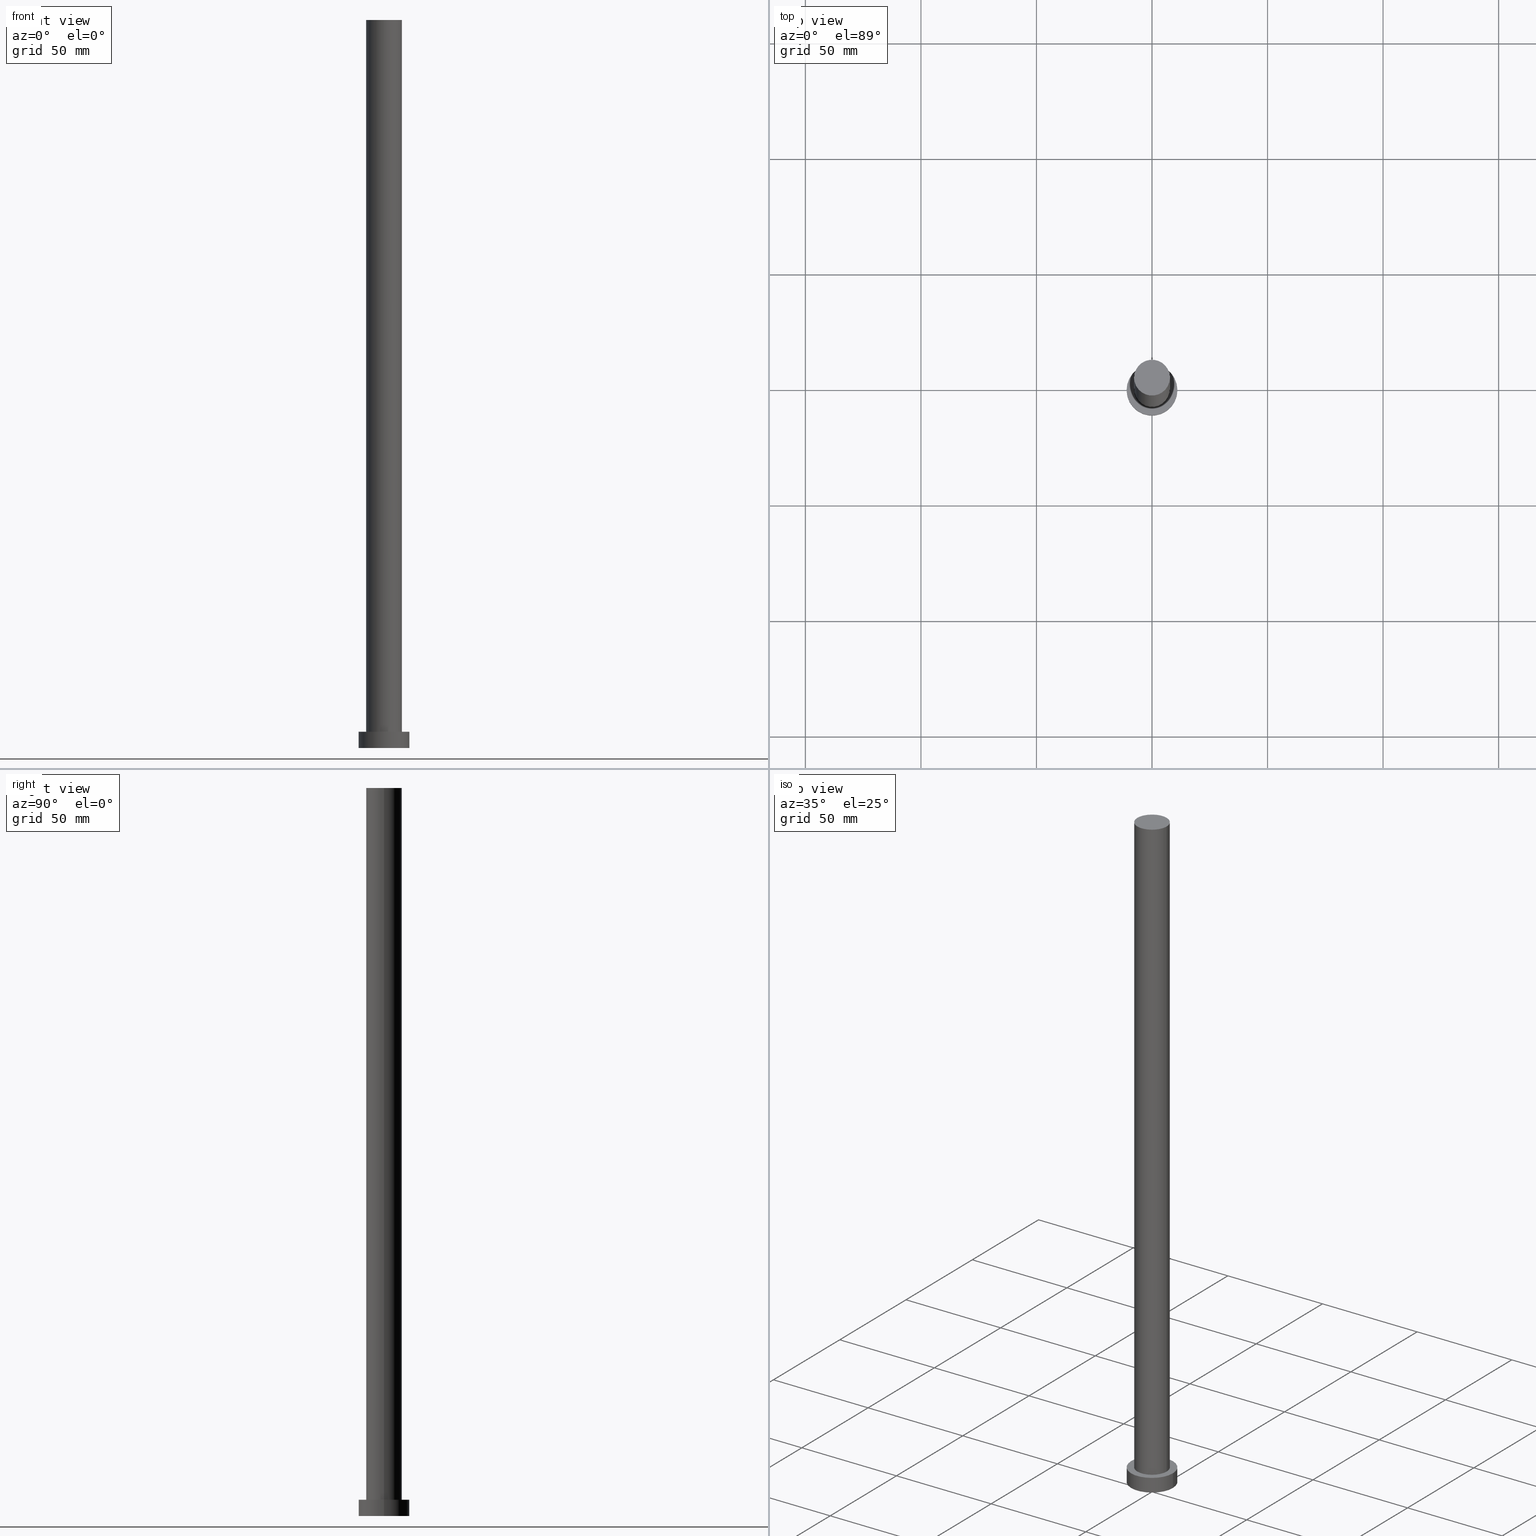
[diagram: canonical four-view strip — front | top / right | iso, engineering-drawing reading convention]
A machine part, canonical four-view strip (front | top / right | iso — engineering-drawing reading convention). The complete STEP part file that produces these views, byte-faithful:
ISO-10303-21;
HEADER;
FILE_DESCRIPTION (( 'STEP AP203' ),
    '1' );
FILE_NAME ('8a33.STEP',
    '2023-02-13T09:48:13',
    ( '' ),
    ( '' ),
    'SwSTEP 2.0',
    'SolidWorks 2019',
    '' );
FILE_SCHEMA (( 'CONFIG_CONTROL_DESIGN' ));
ENDSEC;

DATA;
#1 = DATE_AND_TIME ( #240, #199 ) ;
#2 = FACE_OUTER_BOUND ( 'NONE', #90, .T. ) ;
#3 = CIRCLE ( 'NONE', #181, 11.00000000000000000 ) ;
#4 = CIRCLE ( 'NONE', #31, 7.750000000000000000 ) ;
#5 = LINE ( 'NONE', #83, #39 ) ;
#6 = PRODUCT_DEFINITION ( 'NEZN�M�', '', #219, #143 ) ;
#7 = AXIS2_PLACEMENT_3D ( 'NONE', #74, #78, #198 ) ;
#8 = COORDINATED_UNIVERSAL_TIME_OFFSET ( 1, 0, .AHEAD. ) ;
#9 = ORIENTED_EDGE ( 'NONE', *, *, #93, .T. ) ;
#10 = ORIENTED_EDGE ( 'NONE', *, *, #93, .F. ) ;
#11 = EDGE_LOOP ( 'NONE', ( #176, #244 ) ) ;
#12 = AXIS2_PLACEMENT_3D ( 'NONE', #125, #150, #218 ) ;
#13 = APPLICATION_CONTEXT ( 'configuration controlled 3d designs of mechanical parts and assemblies' ) ;
#14 = DIRECTION ( 'NONE',  ( 0.000000000000000000, 0.000000000000000000, 1.000000000000000000 ) ) ;
#15 = APPROVAL_PERSON_ORGANIZATION ( #116, #62, #159 ) ;
#16 = LINE ( 'NONE', #253, #222 ) ;
#17 = CARTESIAN_POINT ( 'NONE',  ( 0.000000000000000000, 0.000000000000000000, 7.000000000000000000 ) ) ;
#18 = DIRECTION ( 'NONE',  ( -1.000000000000000000, 0.000000000000000000, 0.000000000000000000 ) ) ;
#19 = CARTESIAN_POINT ( 'NONE',  ( 7.750000000000000000, 9.491012693391987787E-16, 7.000000000000000000 ) ) ;
#20 = CIRCLE ( 'NONE', #101, 11.00000000000000000 ) ;
#21 = CARTESIAN_POINT ( 'NONE',  ( 0.000000000000000000, 0.000000000000000000, 315.0000000000000000 ) ) ;
#22 = DIRECTION ( 'NONE',  ( -0.000000000000000000, -0.000000000000000000, -1.000000000000000000 ) ) ;
#23 = COORDINATED_UNIVERSAL_TIME_OFFSET ( 1, 0, .AHEAD. ) ;
#24 = CARTESIAN_POINT ( 'NONE',  ( -11.00000000000000000, 0.000000000000000000, 7.000000000000000000 ) ) ;
#25 = APPROVAL_DATE_TIME ( #48, #207 ) ;
#26 = DIRECTION ( 'NONE',  ( 1.000000000000000000, 0.000000000000000000, 0.000000000000000000 ) ) ;
#27 = AXIS2_PLACEMENT_3D ( 'NONE', #202, #22, #255 ) ;
#28 = APPROVAL_DATE_TIME ( #164, #49 ) ;
#29 = DIRECTION ( 'NONE',  ( 1.000000000000000000, 0.000000000000000000, 0.000000000000000000 ) ) ;
#30 = CC_DESIGN_PERSON_AND_ORGANIZATION_ASSIGNMENT ( #239, #67, ( #219 ) ) ;
#31 = AXIS2_PLACEMENT_3D ( 'NONE', #21, #102, #215 ) ;
#32 = CARTESIAN_POINT ( 'NONE',  ( 0.000000000000000000, 0.000000000000000000, 7.000000000000000000 ) ) ;
#33 = ORIENTED_EDGE ( 'NONE', *, *, #242, .F. ) ;
#34 = CIRCLE ( 'NONE', #58, 11.00000000000000000 ) ;
#35 = CIRCLE ( 'NONE', #250, 7.750000000000000000 ) ;
#36 = VERTEX_POINT ( 'NONE', #247 ) ;
#37 = PRODUCT_RELATED_PRODUCT_CATEGORY ( 'detail', '', ( #228 ) ) ;
#38 = ORIENTED_EDGE ( 'NONE', *, *, #98, .T. ) ;
#39 = VECTOR ( 'NONE', #163, 1000.000000000000000 ) ;
#40 = CC_DESIGN_DATE_AND_TIME_ASSIGNMENT ( #237, #221, ( #6 ) ) ;
#41 = CARTESIAN_POINT ( 'NONE',  ( 0.000000000000000000, 0.000000000000000000, 7.000000000000000000 ) ) ;
#42 = CARTESIAN_POINT ( 'NONE',  ( 0.000000000000000000, 0.000000000000000000, 315.0000000000000000 ) ) ;
#43 = DIRECTION ( 'NONE',  ( -1.000000000000000000, 0.000000000000000000, 0.000000000000000000 ) ) ;
#44 = DIRECTION ( 'NONE',  ( -0.000000000000000000, -0.000000000000000000, -1.000000000000000000 ) ) ;
#45 = ADVANCED_FACE ( 'NONE', ( #59, #69 ), #249, .T. ) ;
#46 = DIRECTION ( 'NONE',  ( -0.000000000000000000, -0.000000000000000000, -1.000000000000000000 ) ) ;
#47 = PERSON_AND_ORGANIZATION_ROLE ( 'design_owner' ) ;
#48 = DATE_AND_TIME ( #131, #243 ) ;
#49 = APPROVAL ( #107, 'NEUR�EN�' ) ;
#50 = APPROVAL_STATUS ( 'not_yet_approved' ) ;
#51 =( LENGTH_UNIT ( ) NAMED_UNIT ( * ) SI_UNIT ( .MILLI., .METRE. ) );
#52 = CIRCLE ( 'NONE', #194, 7.750000000000000000 ) ;
#53 = AXIS2_PLACEMENT_3D ( 'NONE', #165, #65, #29 ) ;
#54 = SHAPE_DEFINITION_REPRESENTATION ( #196, #201 ) ;
#55 = DATE_AND_TIME ( #193, #81 ) ;
#56 = VERTEX_POINT ( 'NONE', #158 ) ;
#57 = VERTEX_POINT ( 'NONE', #212 ) ;
#58 = AXIS2_PLACEMENT_3D ( 'NONE', #119, #234, #197 ) ;
#59 = FACE_BOUND ( 'NONE', #91, .T. ) ;
#60 = DIRECTION ( 'NONE',  ( -0.000000000000000000, -0.000000000000000000, -1.000000000000000000 ) ) ;
#61 = CYLINDRICAL_SURFACE ( 'NONE', #134, 11.00000000000000000 ) ;
#62 = APPROVAL ( #169, 'NEUR�EN�' ) ;
#63 = CARTESIAN_POINT ( 'NONE',  ( 11.00000000000000000, 1.347111479062088405E-15, 7.000000000000000000 ) ) ;
#64 = APPLICATION_PROTOCOL_DEFINITION ( 'international standard', 'config_control_design', 1994, #141 ) ;
#65 = DIRECTION ( 'NONE',  ( 0.000000000000000000, 0.000000000000000000, 1.000000000000000000 ) ) ;
#66 = CARTESIAN_POINT ( 'NONE',  ( 0.000000000000000000, 0.000000000000000000, 7.000000000000000000 ) ) ;
#67 = PERSON_AND_ORGANIZATION_ROLE ( 'creator' ) ;
#68 = MANIFOLD_SOLID_BREP ( 'P�idat vysunut�m3', #175 ) ;
#69 = FACE_OUTER_BOUND ( 'NONE', #140, .T. ) ;
#70 = CC_DESIGN_PERSON_AND_ORGANIZATION_ASSIGNMENT ( #184, #132, ( #6 ) ) ;
#71 = ORIENTED_EDGE ( 'NONE', *, *, #124, .F. ) ;
#72 = CC_DESIGN_PERSON_AND_ORGANIZATION_ASSIGNMENT ( #156, #154, ( #219 ) ) ;
#73 = ORIENTED_EDGE ( 'NONE', *, *, #98, .F. ) ;
#74 = CARTESIAN_POINT ( 'NONE',  ( 0.000000000000000000, 0.000000000000000000, 7.000000000000000000 ) ) ;
#75 = UNCERTAINTY_MEASURE_WITH_UNIT (LENGTH_MEASURE( 1.000000000000000082E-05 ), #51, 'distance_accuracy_value', 'NONE');
#76 = CARTESIAN_POINT ( 'NONE',  ( 7.750000000000000000, 9.491012693391987787E-16, 315.0000000000000000 ) ) ;
#77 = ADVANCED_FACE ( 'NONE', ( #2 ), #235, .T. ) ;
#78 = DIRECTION ( 'NONE',  ( 0.000000000000000000, 0.000000000000000000, 1.000000000000000000 ) ) ;
#79 = FACE_OUTER_BOUND ( 'NONE', #209, .T. ) ;
#80 = CARTESIAN_POINT ( 'NONE',  ( 0.000000000000000000, 0.000000000000000000, 0.000000000000000000 ) ) ;
#81 = LOCAL_TIME ( 10, 48, 13.00000000000000000, #168 ) ;
#82 = PERSON_AND_ORGANIZATION ( #232, #138 ) ;
#83 = CARTESIAN_POINT ( 'NONE',  ( 11.00000000000000000, 1.347111479062088405E-15, 7.000000000000000000 ) ) ;
#84 = APPROVAL_ROLE ( '' ) ;
#85 = CARTESIAN_POINT ( 'NONE',  ( 0.000000000000000000, 0.000000000000000000, 0.000000000000000000 ) ) ;
#86 = EDGE_CURVE ( 'NONE', #135, #36, #106, .T. ) ;
#87 = PERSON_AND_ORGANIZATION ( #232, #138 ) ;
#88 = ORIENTED_EDGE ( 'NONE', *, *, #86, .F. ) ;
#89 = CC_DESIGN_APPROVAL ( #62, ( #162 ) ) ;
#90 = EDGE_LOOP ( 'NONE', ( #189, #166, #225, #210 ) ) ;
#91 = EDGE_LOOP ( 'NONE', ( #174, #192 ) ) ;
#92 = VERTEX_POINT ( 'NONE', #19 ) ;
#93 = EDGE_CURVE ( 'NONE', #56, #36, #144, .T. ) ;
#94 = VERTEX_POINT ( 'NONE', #100 ) ;
#95 =( GEOMETRIC_REPRESENTATION_CONTEXT ( 3 ) GLOBAL_UNCERTAINTY_ASSIGNED_CONTEXT ( ( #75 ) ) GLOBAL_UNIT_ASSIGNED_CONTEXT ( ( #51, #183, #161 ) ) REPRESENTATION_CONTEXT ( 'NONE', 'WORKASPACE' ) );
#96 = DIRECTION ( 'NONE',  ( 1.000000000000000000, 0.000000000000000000, -0.000000000000000000 ) ) ;
#97 = DIRECTION ( 'NONE',  ( 1.000000000000000000, 0.000000000000000000, 0.000000000000000000 ) ) ;
#98 = EDGE_CURVE ( 'NONE', #139, #92, #180, .T. ) ;
#99 = AXIS2_PLACEMENT_3D ( 'NONE', #32, #14, #96 ) ;
#100 = CARTESIAN_POINT ( 'NONE',  ( -7.750000000000000000, 0.000000000000000000, 315.0000000000000000 ) ) ;
#101 = AXIS2_PLACEMENT_3D ( 'NONE', #17, #149, #97 ) ;
#102 = DIRECTION ( 'NONE',  ( 0.000000000000000000, 0.000000000000000000, 1.000000000000000000 ) ) ;
#103 = CARTESIAN_POINT ( 'NONE',  ( 7.750000000000000000, 9.491012693391987787E-16, 315.0000000000000000 ) ) ;
#104 = MECHANICAL_CONTEXT ( 'NONE', #141, 'mechanical' ) ;
#105 = ADVANCED_FACE ( 'NONE', ( #178 ), #118, .T. ) ;
#106 = LINE ( 'NONE', #24, #230 ) ;
#107 = APPROVAL_STATUS ( 'not_yet_approved' ) ;
#108 = DIRECTION ( 'NONE',  ( 1.000000000000000000, 0.000000000000000000, 0.000000000000000000 ) ) ;
#109 = CARTESIAN_POINT ( 'NONE',  ( 0.000000000000000000, 0.000000000000000000, 315.0000000000000000 ) ) ;
#110 = CC_DESIGN_PERSON_AND_ORGANIZATION_ASSIGNMENT ( #111, #186, ( #162 ) ) ;
#111 = PERSON_AND_ORGANIZATION ( #232, #138 ) ;
#112 = AXIS2_PLACEMENT_3D ( 'NONE', #42, #142, #200 ) ;
#113 = ADVANCED_FACE ( 'NONE', ( #79 ), #236, .T. ) ;
#114 = EDGE_LOOP ( 'NONE', ( #71, #10 ) ) ;
#115 = APPROVAL_PERSON_ORGANIZATION ( #87, #49, #153 ) ;
#116 = PERSON_AND_ORGANIZATION ( #232, #138 ) ;
#117 = ORIENTED_EDGE ( 'NONE', *, *, #213, .T. ) ;
#118 = CYLINDRICAL_SURFACE ( 'NONE', #27, 7.750000000000000000 ) ;
#119 = CARTESIAN_POINT ( 'NONE',  ( 0.000000000000000000, 0.000000000000000000, 7.000000000000000000 ) ) ;
#120 = EDGE_CURVE ( 'NONE', #92, #57, #52, .T. ) ;
#121 = DIRECTION ( 'NONE',  ( 0.000000000000000000, 0.000000000000000000, 1.000000000000000000 ) ) ;
#122 = CC_DESIGN_SECURITY_CLASSIFICATION ( #162, ( #219 ) ) ;
#123 = DIRECTION ( 'NONE',  ( -0.000000000000000000, -0.000000000000000000, -1.000000000000000000 ) ) ;
#124 = EDGE_CURVE ( 'NONE', #36, #56, #3, .T. ) ;
#125 = CARTESIAN_POINT ( 'NONE',  ( 0.000000000000000000, 0.000000000000000000, 0.000000000000000000 ) ) ;
#126 = VECTOR ( 'NONE', #123, 1000.000000000000000 ) ;
#127 = CALENDAR_DATE ( 2023, 13, 2 ) ;
#128 = CC_DESIGN_APPROVAL ( #207, ( #6 ) ) ;
#129 = DIRECTION ( 'NONE',  ( 0.000000000000000000, 0.000000000000000000, 1.000000000000000000 ) ) ;
#130 = EDGE_CURVE ( 'NONE', #214, #56, #5, .T. ) ;
#131 = CALENDAR_DATE ( 2023, 13, 2 ) ;
#132 = PERSON_AND_ORGANIZATION_ROLE ( 'creator' ) ;
#133 = AXIS2_PLACEMENT_3D ( 'NONE', #41, #148, #43 ) ;
#134 = AXIS2_PLACEMENT_3D ( 'NONE', #177, #60, #18 ) ;
#135 = VERTEX_POINT ( 'NONE', #251 ) ;
#136 = ORIENTED_EDGE ( 'NONE', *, *, #130, .T. ) ;
#137 = EDGE_CURVE ( 'NONE', #94, #57, #16, .T. ) ;
#138 = ORGANIZATION ( 'NEUR�EN�', 'NEUR�EN�', '' ) ;
#139 = VERTEX_POINT ( 'NONE', #76 ) ;
#140 = EDGE_LOOP ( 'NONE', ( #117, #241 ) ) ;
#141 = APPLICATION_CONTEXT ( 'configuration controlled 3d designs of mechanical parts and assemblies' ) ;
#142 = DIRECTION ( 'NONE',  ( 0.000000000000000000, 0.000000000000000000, 1.000000000000000000 ) ) ;
#143 = DESIGN_CONTEXT ( 'detailed design', #13, 'design' ) ;
#144 = CIRCLE ( 'NONE', #12, 11.00000000000000000 ) ;
#145 = CC_DESIGN_PERSON_AND_ORGANIZATION_ASSIGNMENT ( #152, #47, ( #228 ) ) ;
#146 = CC_DESIGN_APPROVAL ( #49, ( #219 ) ) ;
#147 = FACE_OUTER_BOUND ( 'NONE', #11, .T. ) ;
#148 = DIRECTION ( 'NONE',  ( -0.000000000000000000, -0.000000000000000000, -1.000000000000000000 ) ) ;
#149 = DIRECTION ( 'NONE',  ( 0.000000000000000000, 0.000000000000000000, 1.000000000000000000 ) ) ;
#150 = DIRECTION ( 'NONE',  ( 0.000000000000000000, 0.000000000000000000, 1.000000000000000000 ) ) ;
#151 = LOCAL_TIME ( 10, 48, 13.00000000000000000, #23 ) ;
#152 = PERSON_AND_ORGANIZATION ( #232, #138 ) ;
#153 = APPROVAL_ROLE ( '' ) ;
#154 = PERSON_AND_ORGANIZATION_ROLE ( 'design_supplier' ) ;
#155 = LOCAL_TIME ( 10, 48, 13.00000000000000000, #179 ) ;
#156 = PERSON_AND_ORGANIZATION ( #232, #138 ) ;
#157 = DIRECTION ( 'NONE',  ( 1.000000000000000000, 0.000000000000000000, -0.000000000000000000 ) ) ;
#158 = CARTESIAN_POINT ( 'NONE',  ( 11.00000000000000000, 1.347111479062088405E-15, 0.000000000000000000 ) ) ;
#159 = APPROVAL_ROLE ( '' ) ;
#160 = DIRECTION ( 'NONE',  ( 1.000000000000000000, 0.000000000000000000, 0.000000000000000000 ) ) ;
#161 =( NAMED_UNIT ( * ) SI_UNIT ( $, .STERADIAN. ) SOLID_ANGLE_UNIT ( ) );
#162 = SECURITY_CLASSIFICATION ( '', '', #208 ) ;
#163 = DIRECTION ( 'NONE',  ( -0.000000000000000000, -0.000000000000000000, -1.000000000000000000 ) ) ;
#164 = DATE_AND_TIME ( #223, #155 ) ;
#165 = CARTESIAN_POINT ( 'NONE',  ( 0.000000000000000000, 0.000000000000000000, 0.000000000000000000 ) ) ;
#166 = ORIENTED_EDGE ( 'NONE', *, *, #213, .F. ) ;
#167 = EDGE_CURVE ( 'NONE', #214, #135, #34, .T. ) ;
#168 = COORDINATED_UNIVERSAL_TIME_OFFSET ( 1, 0, .AHEAD. ) ;
#169 = APPROVAL_STATUS ( 'not_yet_approved' ) ;
#170 = AXIS2_PLACEMENT_3D ( 'NONE', #109, #185, #204 ) ;
#171 = ORIENTED_EDGE ( 'NONE', *, *, #167, .F. ) ;
#172 = ORIENTED_EDGE ( 'NONE', *, *, #137, .F. ) ;
#173 = CC_DESIGN_DATE_AND_TIME_ASSIGNMENT ( #1, #248, ( #162 ) ) ;
#174 = ORIENTED_EDGE ( 'NONE', *, *, #182, .F. ) ;
#175 = CLOSED_SHELL ( 'NONE', ( #113, #191, #77, #45, #246, #105, #233 ) ) ;
#176 = ORIENTED_EDGE ( 'NONE', *, *, #217, .T. ) ;
#177 = CARTESIAN_POINT ( 'NONE',  ( 0.000000000000000000, 0.000000000000000000, 7.000000000000000000 ) ) ;
#178 = FACE_OUTER_BOUND ( 'NONE', #190, .T. ) ;
#179 = COORDINATED_UNIVERSAL_TIME_OFFSET ( 1, 0, .AHEAD. ) ;
#180 = LINE ( 'NONE', #103, #126 ) ;
#181 = AXIS2_PLACEMENT_3D ( 'NONE', #85, #129, #108 ) ;
#182 = EDGE_CURVE ( 'NONE', #57, #92, #238, .T. ) ;
#183 =( NAMED_UNIT ( * ) PLANE_ANGLE_UNIT ( ) SI_UNIT ( $, .RADIAN. ) );
#184 = PERSON_AND_ORGANIZATION ( #232, #138 ) ;
#185 = DIRECTION ( 'NONE',  ( -0.000000000000000000, -0.000000000000000000, -1.000000000000000000 ) ) ;
#186 = PERSON_AND_ORGANIZATION_ROLE ( 'classification_officer' ) ;
#187 = APPROVAL_DATE_TIME ( #55, #62 ) ;
#188 = DIRECTION ( 'NONE',  ( 0.000000000000000000, 0.000000000000000000, 1.000000000000000000 ) ) ;
#189 = ORIENTED_EDGE ( 'NONE', *, *, #130, .F. ) ;
#190 = EDGE_LOOP ( 'NONE', ( #73, #211, #227, #245 ) ) ;
#191 = ADVANCED_FACE ( 'NONE', ( #229 ), #61, .T. ) ;
#192 = ORIENTED_EDGE ( 'NONE', *, *, #120, .F. ) ;
#193 = CALENDAR_DATE ( 2023, 13, 2 ) ;
#194 = AXIS2_PLACEMENT_3D ( 'NONE', #66, #188, #26 ) ;
#195 = APPROVAL_PERSON_ORGANIZATION ( #82, #207, #84 ) ;
#196 = PRODUCT_DEFINITION_SHAPE ( 'NONE', 'NONE',  #6 ) ;
#197 = DIRECTION ( 'NONE',  ( 1.000000000000000000, 0.000000000000000000, 0.000000000000000000 ) ) ;
#198 = DIRECTION ( 'NONE',  ( 1.000000000000000000, 0.000000000000000000, 0.000000000000000000 ) ) ;
#199 = LOCAL_TIME ( 10, 48, 13.00000000000000000, #8 ) ;
#200 = DIRECTION ( 'NONE',  ( 1.000000000000000000, 0.000000000000000000, -0.000000000000000000 ) ) ;
#201 = ADVANCED_BREP_SHAPE_REPRESENTATION ( '8a33', ( #68, #53 ), #95 ) ;
#202 = CARTESIAN_POINT ( 'NONE',  ( 0.000000000000000000, 0.000000000000000000, 315.0000000000000000 ) ) ;
#203 = COORDINATED_UNIVERSAL_TIME_OFFSET ( 1, 0, .AHEAD. ) ;
#204 = DIRECTION ( 'NONE',  ( -1.000000000000000000, 0.000000000000000000, 0.000000000000000000 ) ) ;
#205 = APPLICATION_PROTOCOL_DEFINITION ( 'international standard', 'config_control_design', 1994, #13 ) ;
#206 = DIRECTION ( 'NONE',  ( 0.000000000000000000, 0.000000000000000000, 1.000000000000000000 ) ) ;
#207 = APPROVAL ( #50, 'NEUR�EN�' ) ;
#208 = SECURITY_CLASSIFICATION_LEVEL ( 'unclassified' ) ;
#209 = EDGE_LOOP ( 'NONE', ( #33, #38, #252, #172 ) ) ;
#210 = ORIENTED_EDGE ( 'NONE', *, *, #124, .T. ) ;
#211 = ORIENTED_EDGE ( 'NONE', *, *, #217, .F. ) ;
#212 = CARTESIAN_POINT ( 'NONE',  ( -7.750000000000000000, 0.000000000000000000, 7.000000000000000000 ) ) ;
#213 = EDGE_CURVE ( 'NONE', #135, #214, #20, .T. ) ;
#214 = VERTEX_POINT ( 'NONE', #63 ) ;
#215 = DIRECTION ( 'NONE',  ( 1.000000000000000000, 0.000000000000000000, 0.000000000000000000 ) ) ;
#216 = FACE_OUTER_BOUND ( 'NONE', #114, .T. ) ;
#217 = EDGE_CURVE ( 'NONE', #94, #139, #35, .T. ) ;
#218 = DIRECTION ( 'NONE',  ( 1.000000000000000000, 0.000000000000000000, 0.000000000000000000 ) ) ;
#219 = PRODUCT_DEFINITION_FORMATION_WITH_SPECIFIED_SOURCE ( 'LIBOVOLN�', '', #228, .NOT_KNOWN. ) ;
#220 = PLANE ( 'NONE',  #231 ) ;
#221 = DATE_TIME_ROLE ( 'creation_date' ) ;
#222 = VECTOR ( 'NONE', #46, 1000.000000000000000 ) ;
#223 = CALENDAR_DATE ( 2023, 13, 2 ) ;
#224 = EDGE_LOOP ( 'NONE', ( #171, #136, #9, #88 ) ) ;
#225 = ORIENTED_EDGE ( 'NONE', *, *, #86, .T. ) ;
#226 = PLANE ( 'NONE',  #112 ) ;
#227 = ORIENTED_EDGE ( 'NONE', *, *, #137, .T. ) ;
#228 = PRODUCT ( '8a33', '8a33', '', ( #104 ) ) ;
#229 = FACE_OUTER_BOUND ( 'NONE', #224, .T. ) ;
#230 = VECTOR ( 'NONE', #44, 1000.000000000000000 ) ;
#231 = AXIS2_PLACEMENT_3D ( 'NONE', #80, #206, #157 ) ;
#232 = PERSON ( 'NEUR�EN�', 'NEUR�EN�', 'NEUR�EN�', ('NEUR�EN�'), ('NEUR�EN�'), ('NEUR�EN�') ) ;
#233 = ADVANCED_FACE ( 'NONE', ( #147 ), #226, .T. ) ;
#234 = DIRECTION ( 'NONE',  ( 0.000000000000000000, 0.000000000000000000, 1.000000000000000000 ) ) ;
#235 = CYLINDRICAL_SURFACE ( 'NONE', #133, 11.00000000000000000 ) ;
#236 = CYLINDRICAL_SURFACE ( 'NONE', #170, 7.750000000000000000 ) ;
#237 = DATE_AND_TIME ( #127, #151 ) ;
#238 = CIRCLE ( 'NONE', #7, 7.750000000000000000 ) ;
#239 = PERSON_AND_ORGANIZATION ( #232, #138 ) ;
#240 = CALENDAR_DATE ( 2023, 13, 2 ) ;
#241 = ORIENTED_EDGE ( 'NONE', *, *, #167, .T. ) ;
#242 = EDGE_CURVE ( 'NONE', #139, #94, #4, .T. ) ;
#243 = LOCAL_TIME ( 10, 48, 13.00000000000000000, #203 ) ;
#244 = ORIENTED_EDGE ( 'NONE', *, *, #242, .T. ) ;
#245 = ORIENTED_EDGE ( 'NONE', *, *, #182, .T. ) ;
#246 = ADVANCED_FACE ( 'NONE', ( #216 ), #220, .F. ) ;
#247 = CARTESIAN_POINT ( 'NONE',  ( -11.00000000000000000, 0.000000000000000000, 0.000000000000000000 ) ) ;
#248 = DATE_TIME_ROLE ( 'classification_date' ) ;
#249 = PLANE ( 'NONE',  #99 ) ;
#250 = AXIS2_PLACEMENT_3D ( 'NONE', #254, #121, #160 ) ;
#251 = CARTESIAN_POINT ( 'NONE',  ( -11.00000000000000000, 0.000000000000000000, 7.000000000000000000 ) ) ;
#252 = ORIENTED_EDGE ( 'NONE', *, *, #120, .T. ) ;
#253 = CARTESIAN_POINT ( 'NONE',  ( -7.750000000000000000, 0.000000000000000000, 315.0000000000000000 ) ) ;
#254 = CARTESIAN_POINT ( 'NONE',  ( 0.000000000000000000, 0.000000000000000000, 315.0000000000000000 ) ) ;
#255 = DIRECTION ( 'NONE',  ( -1.000000000000000000, 0.000000000000000000, 0.000000000000000000 ) ) ;
ENDSEC;
END-ISO-10303-21;
